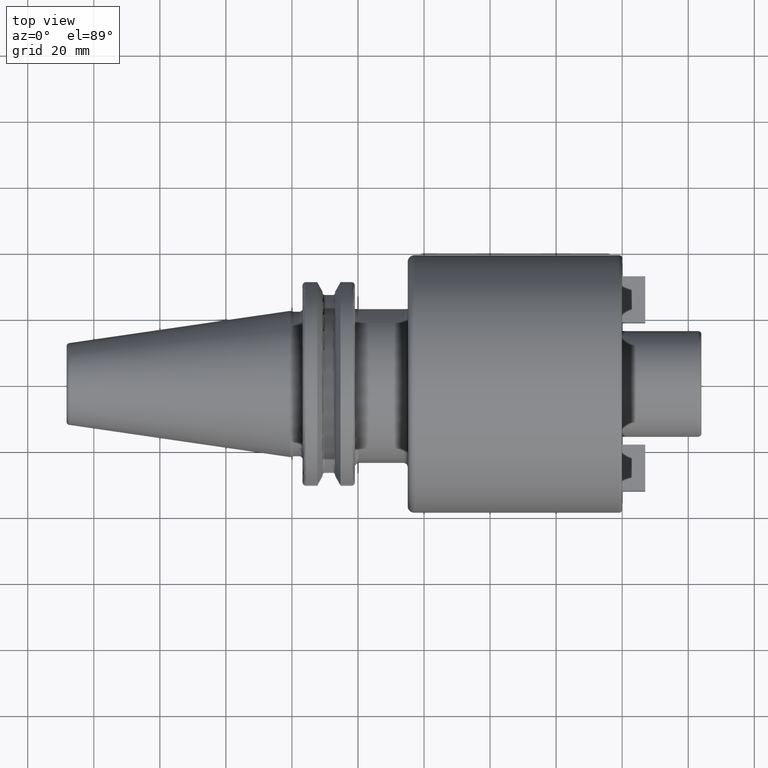
[diagram: clean part render]
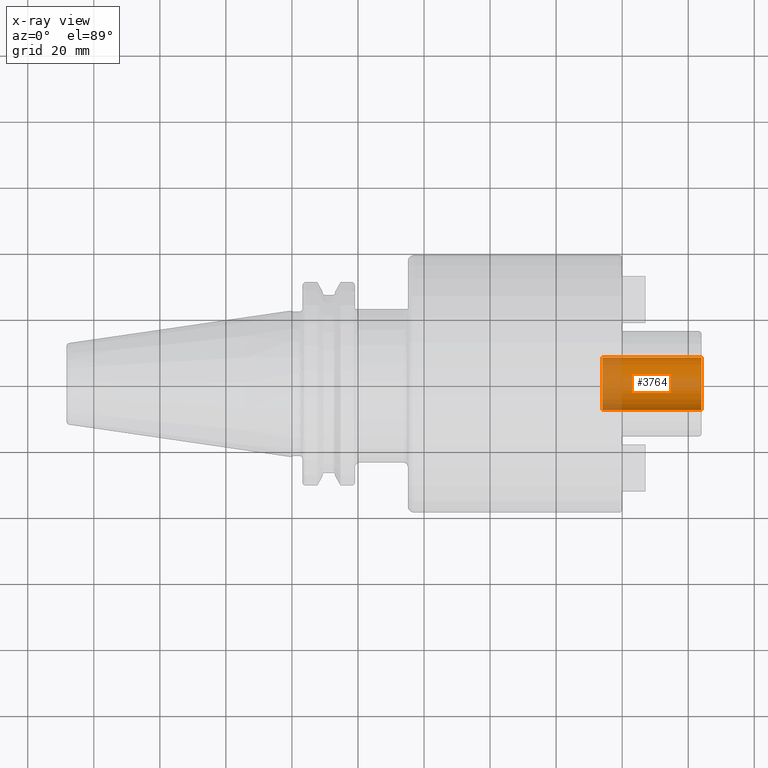
[diagram: x-ray — body ghosted, one internal face saturated and labeled with its STEP entity id]
A machine part, top view, then the same camera in x-ray: the body is ghosted and one INTERNAL B-rep face — a face not visible from any outside direction — is saturated and labeled: STEP entity #3764.
In plain terms, the highlighted cylindrical surface (edge-blend (fillet) strip) has radius 8 mm, axis along (1, 0, 0).
Its self-contained STEP definition (entity closure, byte-faithful):
#3699=CARTESIAN_POINT('',(1.24E2,0.E0,0.E0));
#3700=DIRECTION('',(-1.E0,0.E0,0.E0));
#3701=DIRECTION('',(0.E0,1.E0,0.E0));
#3702=AXIS2_PLACEMENT_3D('',#3699,#3700,#3701);
#3709=DIRECTION('',(-1.E0,0.E0,0.E0));
#3710=VECTOR('',#3709,3.E1);
#3711=CARTESIAN_POINT('',(1.24E2,8.E0,0.E0));
#3712=LINE('',#3711,#3710);
#3713=DIRECTION('',(-1.E0,0.E0,0.E0));
#3714=VECTOR('',#3713,3.E1);
#3715=CARTESIAN_POINT('',(1.24E2,-8.E0,0.E0));
#3716=LINE('',#3715,#3714);
#3717=CARTESIAN_POINT('',(9.4E1,0.E0,0.E0));
#3718=DIRECTION('',(1.E0,0.E0,0.E0));
#3719=DIRECTION('',(0.E0,-1.E0,0.E0));
#3720=AXIS2_PLACEMENT_3D('',#3717,#3718,#3719);
#3737=CARTESIAN_POINT('',(9.4E1,-8.E0,0.E0));
#3738=CARTESIAN_POINT('',(9.4E1,8.E0,0.E0));
#3739=VERTEX_POINT('',#3737);
#3740=VERTEX_POINT('',#3738);
#3741=CARTESIAN_POINT('',(1.24E2,-8.E0,0.E0));
#3742=CARTESIAN_POINT('',(1.24E2,8.E0,0.E0));
#3743=VERTEX_POINT('',#3741);
#3744=VERTEX_POINT('',#3742);
#3749=CARTESIAN_POINT('',(7.758367445015E1,0.E0,0.E0));
#3750=DIRECTION('',(1.E0,0.E0,0.E0));
#3751=DIRECTION('',(0.E0,-1.E0,0.E0));
#3752=AXIS2_PLACEMENT_3D('',#3749,#3750,#3751);
#3753=CYLINDRICAL_SURFACE('',#3752,8.E0);
#3755=ORIENTED_EDGE('',*,*,#3754,.T.);
#3757=ORIENTED_EDGE('',*,*,#3756,.T.);
#3759=ORIENTED_EDGE('',*,*,#3758,.T.);
#3761=ORIENTED_EDGE('',*,*,#3760,.F.);
#3762=EDGE_LOOP('',(#3755,#3757,#3759,#3761));
#3763=FACE_OUTER_BOUND('',#3762,.F.);
#3764=ADVANCED_FACE('',(#3763),#3753,.F.);
#3703=CIRCLE('',#3702,8.E0);
#3721=CIRCLE('',#3720,8.E0);
#3754=EDGE_CURVE('',#3744,#3743,#3703,.T.);
#3756=EDGE_CURVE('',#3743,#3739,#3716,.T.);
#3758=EDGE_CURVE('',#3739,#3740,#3721,.T.);
#3760=EDGE_CURVE('',#3744,#3740,#3712,.T.);